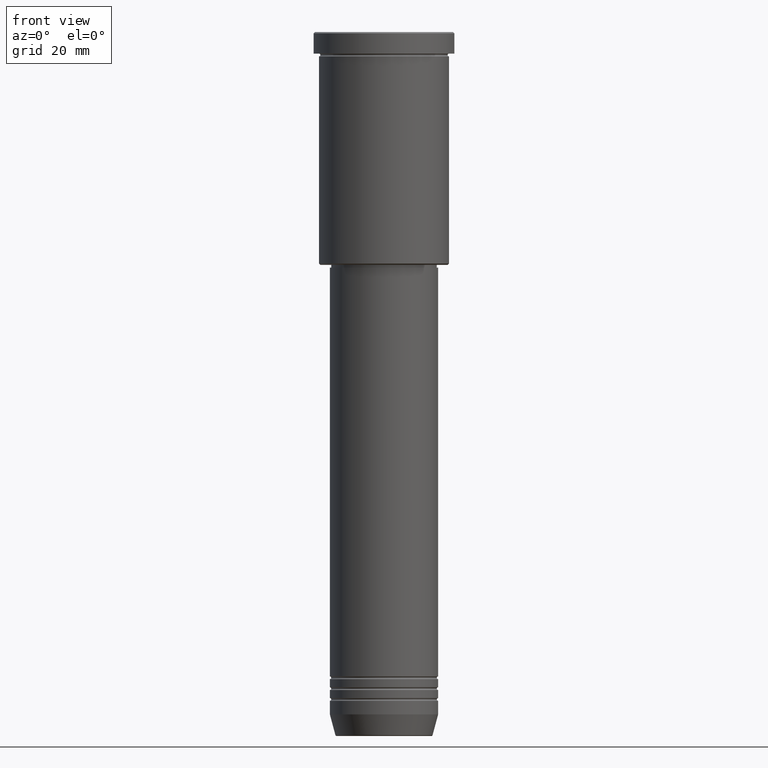
[diagram: clean part render]
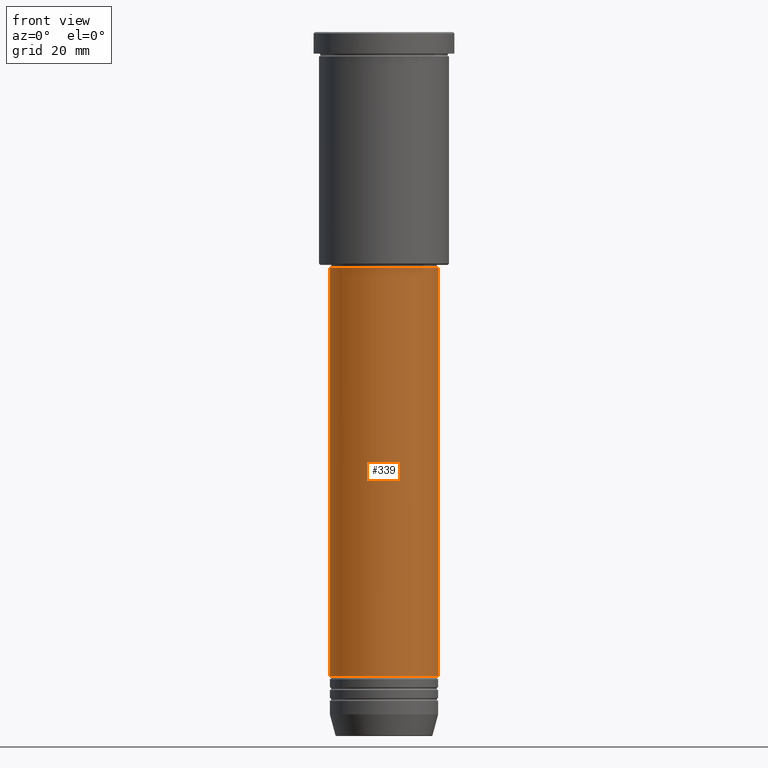
[diagram: same view with one face highlighted and labeled with its STEP entity id]
A machine part, front view. The second image highlights one B-rep face of the part: STEP entity #339.
In plain terms, the highlighted cylindrical surface (partial cylindrical patch) has radius 20 mm, axis along (-0, -0, 1).
Its self-contained STEP definition (entity closure, byte-faithful):
#1 = EDGE_LOOP ( 'NONE', ( #1101, #486, #977, #617 ) ) ;
#42 = DIRECTION ( 'NONE',  ( -0.000000000000000000, -0.000000000000000000, 1.000000000000000000 ) ) ;
#59 = VECTOR ( 'NONE', #42, 1000.000000000000000 ) ;
#65 = CIRCLE ( 'NONE', #848, 20.00000000000000355 ) ;
#66 = CARTESIAN_POINT ( 'NONE',  ( 0.000000000000000000, 0.000000000000000000, 0.000000000000000000 ) ) ;
#105 = EDGE_CURVE ( 'NONE', #599, #984, #328, .T. ) ;
#109 = CARTESIAN_POINT ( 'NONE',  ( 0.000000000000000000, 0.000000000000000000, -87.00000000000002842 ) ) ;
#166 = EDGE_CURVE ( 'NONE', #492, #984, #649, .T. ) ;
#196 = VECTOR ( 'NONE', #811, 1000.000000000000000 ) ;
#245 = FACE_OUTER_BOUND ( 'NONE', #1, .T. ) ;
#306 = CARTESIAN_POINT ( 'NONE',  ( 20.00000000000000355, 0.000000000000000000, -87.00000000000002842 ) ) ;
#328 = CIRCLE ( 'NONE', #1002, 20.00000000000000355 ) ;
#339 = ADVANCED_FACE ( 'NONE', ( #245 ), #526, .T. ) ;
#414 = CARTESIAN_POINT ( 'NONE',  ( -20.00000000000000355, 2.449293598294706907E-15, 0.000000000000000000 ) ) ;
#449 = DIRECTION ( 'NONE',  ( -0.000000000000000000, -0.000000000000000000, 1.000000000000000000 ) ) ;
#479 = AXIS2_PLACEMENT_3D ( 'NONE', #66, #694, #991 ) ;
#486 = ORIENTED_EDGE ( 'NONE', *, *, #1177, .T. ) ;
#492 = VERTEX_POINT ( 'NONE', #542 ) ;
#500 = CARTESIAN_POINT ( 'NONE',  ( 20.00000000000000355, 0.000000000000000000, 0.000000000000000000 ) ) ;
#526 = CYLINDRICAL_SURFACE ( 'NONE', #479, 20.00000000000000355 ) ;
#535 = DIRECTION ( 'NONE',  ( 1.000000000000000000, 0.000000000000000000, 0.000000000000000000 ) ) ;
#542 = CARTESIAN_POINT ( 'NONE',  ( 20.00000000000000355, 0.000000000000000000, -238.0000000000000000 ) ) ;
#545 = VERTEX_POINT ( 'NONE', #827 ) ;
#599 = VERTEX_POINT ( 'NONE', #739 ) ;
#617 = ORIENTED_EDGE ( 'NONE', *, *, #105, .F. ) ;
#620 = DIRECTION ( 'NONE',  ( -0.000000000000000000, -0.000000000000000000, 1.000000000000000000 ) ) ;
#649 = LINE ( 'NONE', #500, #59 ) ;
#694 = DIRECTION ( 'NONE',  ( -0.000000000000000000, -0.000000000000000000, 1.000000000000000000 ) ) ;
#728 = DIRECTION ( 'NONE',  ( 1.000000000000000000, 0.000000000000000000, 0.000000000000000000 ) ) ;
#735 = CARTESIAN_POINT ( 'NONE',  ( 0.000000000000000000, 0.000000000000000000, -238.0000000000000000 ) ) ;
#739 = CARTESIAN_POINT ( 'NONE',  ( -20.00000000000000355, 2.449293598294706907E-15, -87.00000000000002842 ) ) ;
#762 = EDGE_CURVE ( 'NONE', #545, #599, #1154, .T. ) ;
#811 = DIRECTION ( 'NONE',  ( -0.000000000000000000, -0.000000000000000000, 1.000000000000000000 ) ) ;
#827 = CARTESIAN_POINT ( 'NONE',  ( -20.00000000000000355, 2.449293598294706907E-15, -238.0000000000000000 ) ) ;
#848 = AXIS2_PLACEMENT_3D ( 'NONE', #735, #449, #728 ) ;
#977 = ORIENTED_EDGE ( 'NONE', *, *, #166, .T. ) ;
#984 = VERTEX_POINT ( 'NONE', #306 ) ;
#991 = DIRECTION ( 'NONE',  ( 1.000000000000000000, 0.000000000000000000, 0.000000000000000000 ) ) ;
#1002 = AXIS2_PLACEMENT_3D ( 'NONE', #109, #620, #535 ) ;
#1101 = ORIENTED_EDGE ( 'NONE', *, *, #762, .F. ) ;
#1154 = LINE ( 'NONE', #414, #196 ) ;
#1177 = EDGE_CURVE ( 'NONE', #545, #492, #65, .T. ) ;